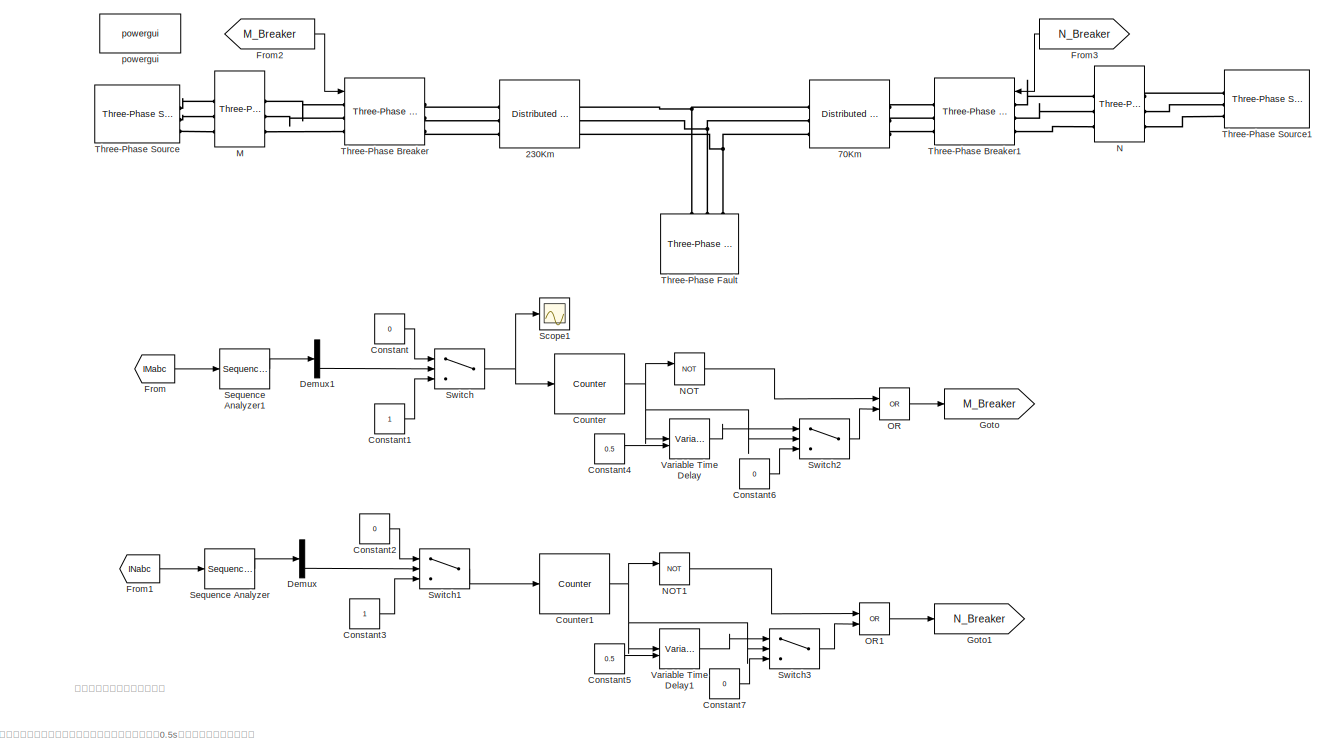
[diagram: root canvas - part 1/2, most of the canvas]
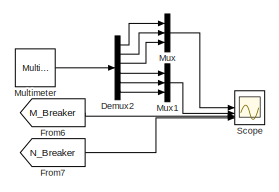
[diagram: root canvas - part 2/2, top right region]
MODEL slx_3e2d8bfbf923
KIND model
CONFIG AbsTol = auto
CONFIG EnableMultiTasking = off
CONFIG FixedStep = auto
CONFIG MaxStep = auto
CONFIG MinStep = auto
CONFIG RelTol = 1e-3
CONFIG SampleTimeConstraint = Unconstrained
CONFIG SolverName = VariableStepAuto
CONFIG StartTime = 0.0
CONFIG StopTime = 1
BLOCK [Reference] 230Km  REF=spsDistributedParametersLineLib/Distributed Parameters Line
  LibrarySourceBlock = sps_lib/Power Grid Elements/Distributed Parameters Line
  SourceBlock = spsDistributedParametersLineLib/Distributed Parameters Line
  SourceType = Distributed Parameters Line
BLOCK [Reference] 70Km  REF=spsDistributedParametersLineLib/Distributed Parameters Line
  LibrarySourceBlock = sps_lib/Power Grid Elements/Distributed Parameters Line
  SourceBlock = spsDistributedParametersLineLib/Distributed Parameters Line
  SourceType = Distributed Parameters Line
BLOCK [Constant] Constant
  Value = 0
BLOCK [Constant] Constant1
BLOCK [Constant] Constant2
  Value = 0
BLOCK [Constant] Constant3
BLOCK [Constant] Constant4
  Value = 0.5
BLOCK [Constant] Constant5
  Value = 0.5
BLOCK [Constant] Constant6
  Value = 0
BLOCK [Constant] Constant7
  Value = 0
BLOCK [Reference] Counter  REF=dspswit3/Counter
  SourceBlock = dspswit3/Counter
  SourceType = Counter
BLOCK [Reference] Counter1  REF=dspswit3/Counter
  SourceBlock = dspswit3/Counter
  SourceType = Counter
BLOCK [Demux] Demux
  Outputs = 3
BLOCK [Demux] Demux1
  Outputs = 3
BLOCK [Demux] Demux2
  Outputs = 6
BLOCK [From] From
  GotoTag = IMabc
  TagVisibility = global
BLOCK [From] From1
  GotoTag = INabc
  TagVisibility = global
BLOCK [From] From2
  GotoTag = M_Breaker
BLOCK [From] From3
  GotoTag = N_Breaker
BLOCK [From] From6
  GotoTag = M_Breaker
BLOCK [From] From7
  GotoTag = N_Breaker
BLOCK [Goto] Goto
  GotoTag = M_Breaker
BLOCK [Goto] Goto1
  GotoTag = N_Breaker
BLOCK [Reference] M  REF=spsThreePhaseVIMeasurementLib/Three-Phase
V-I Measurement
  LibrarySourceBlock = sps_lib/Sensors and Measurements/Three-Phase\nV-I Measurement
  SourceBlock = spsThreePhaseVIMeasurementLib/Three-Phase\nV-I Measurement
  SourceType = Three-Phase VI Measurement
BLOCK [Reference] Multimeter  REF=spsMultimeterLib/Multimeter
  LibrarySourceBlock = sps_lib/Sensors and Measurements/Multimeter
  SourceBlock = spsMultimeterLib/Multimeter
  SourceType = Multimeter
BLOCK [Mux] Mux
  DisplayOption = bar
  Inputs = 3
BLOCK [Mux] Mux1
  DisplayOption = bar
  Inputs = 3
BLOCK [Reference] N  REF=spsThreePhaseVIMeasurementLib/Three-Phase
V-I Measurement
  LibrarySourceBlock = sps_lib/Sensors and Measurements/Three-Phase\nV-I Measurement
  SourceBlock = spsThreePhaseVIMeasurementLib/Three-Phase\nV-I Measurement
  SourceType = Three-Phase VI Measurement
BLOCK [Logic] NOT
  AllPortsSameDT = off
  IconShape = distinctive
  Operator = NOT
  OutDataTypeStr = boolean
BLOCK [Logic] NOT1
  AllPortsSameDT = off
  IconShape = distinctive
  Operator = NOT
  OutDataTypeStr = boolean
BLOCK [Logic] OR
  AllPortsSameDT = off
  IconShape = distinctive
  Operator = OR
  OutDataTypeStr = boolean
BLOCK [Logic] OR1
  AllPortsSameDT = off
  IconShape = distinctive
  Operator = OR
  OutDataTypeStr = boolean
BLOCK [Scope] Scope
  Floating = off
  NumInputPorts = 4
  ScopeSpecificationString = Simulink.scopes.TimeScopeBlockCfg('CurrentConfiguration', extmgr.ConfigurationSet(extmgr.Configuration('Core','General UI',true,'FigureColor',[1 1 1]),extmgr.Configuration('Core','Source UI',true),extmgr.Configuration('Sources','WiredSimulink',true),extmgr.Configuration('Visuals','Time Domain',true,'SerializedDisplays',{struct('MinYLimReal','-6118553.03656','MaxYLimReal','5281665.99707','YLabelRea...<+4722ch>
BLOCK [Scope] Scope1
  Floating = off
  NumInputPorts = 1
  ScopeSpecificationString = Simulink.scopes.TimeScopeBlockCfg('CurrentConfiguration', extmgr.ConfigurationSet(extmgr.Configuration('Core','General UI',true),extmgr.Configuration('Core','Source UI',true),extmgr.Configuration('Sources','WiredSimulink',true,'DataLoggingVariableName','ScopeData1'),extmgr.Configuration('Visuals','Time Domain',true,'SerializedDisplays',{struct('MinYLimReal','-0.125','MaxYLimReal','1.125','YLabelRe...<+1353ch>
BLOCK [Reference] Sequence Analyzer  REF=spsSequenceAnalyzerLib/Sequence Analyzer
  LibrarySourceBlock = sps_lib/Sensors and Measurements/Sequence Analyzer
  SourceBlock = spsSequenceAnalyzerLib/Sequence Analyzer
  SourceType = Sequence Analyzer
BLOCK [Reference] Sequence Analyzer1  REF=spsSequenceAnalyzerLib/Sequence Analyzer
  LibrarySourceBlock = sps_lib/Sensors and Measurements/Sequence Analyzer
  SourceBlock = spsSequenceAnalyzerLib/Sequence Analyzer
  SourceType = Sequence Analyzer
BLOCK [Switch] Switch
  InputSameDT = off
  SaturateOnIntegerOverflow = off
  Threshold = 1
BLOCK [Switch] Switch1
  InputSameDT = off
  SaturateOnIntegerOverflow = off
  Threshold = 1
BLOCK [Switch] Switch2
  InputSameDT = off
  SaturateOnIntegerOverflow = off
  Threshold = 1
BLOCK [Switch] Switch3
  InputSameDT = off
  SaturateOnIntegerOverflow = off
  Threshold = 1
BLOCK [Reference] Three-Phase Breaker  REF=spsThreePhaseBreakerLib/Three-Phase Breaker
  LibrarySourceBlock = sps_lib/Power Grid Elements/Three-Phase Breaker
  SourceBlock = spsThreePhaseBreakerLib/Three-Phase Breaker
  SourceType = Three-Phase Breaker
BLOCK [Reference] Three-Phase Breaker1  REF=spsThreePhaseBreakerLib/Three-Phase Breaker
  LibrarySourceBlock = sps_lib/Power Grid Elements/Three-Phase Breaker
  SourceBlock = spsThreePhaseBreakerLib/Three-Phase Breaker
  SourceType = Three-Phase Breaker
BLOCK [Reference] Three-Phase Fault  REF=spsThreePhaseFaultLib/Three-Phase Fault
  LibrarySourceBlock = sps_lib/Power Grid Elements/Three-Phase Fault
  NameLocation = left
  SourceBlock = spsThreePhaseFaultLib/Three-Phase Fault
  SourceType = Three-Phase Fault
BLOCK [Reference] Three-Phase Source  REF=spsThreePhaseSourceLib/Three-Phase Source
  LibrarySourceBlock = sps_lib/Sources/Three-Phase Source
  SourceBlock = spsThreePhaseSourceLib/Three-Phase Source
  SourceType = Three-Phase Source
BLOCK [Reference] Three-Phase Source1  REF=spsThreePhaseSourceLib/Three-Phase Source
  LibrarySourceBlock = sps_lib/Sources/Three-Phase Source
  SourceBlock = spsThreePhaseSourceLib/Three-Phase Source
  SourceType = Three-Phase Source
BLOCK [VariableTransportDelay] Variable Time Delay
  MaximumDelay = 10
BLOCK [VariableTransportDelay] Variable Time Delay1
  MaximumDelay = 10
BLOCK [Reference] powergui  REF=sps_lib/powergui
  Priority = 1
  SourceBlock = sps_lib/powergui
  SourceType = PSB option menu block
ANNOTATION (root): 检测零序电流，一旦超过预设值，立即切开断路器，延迟0.5s后，自动使断路器重合。
ANNOTATION (root): 零序电流保护自动重合闸仿真
LINE Constant1:1 -> Switch:3
LINE Constant2:1 -> Switch1:1
LINE Constant3:1 -> Switch1:3
LINE Constant4:1 -> Variable Time Delay:2
LINE Constant5:1 -> Variable Time Delay1:2
LINE Constant6:1 -> Switch2:3
LINE Constant7:1 -> Switch3:3
LINE Constant:1 -> Switch:1
NET Counter1:1 -> NOT1:1, Switch3:2, Variable Time Delay1:1
NET Counter:1 -> NOT:1, Switch2:2, Variable Time Delay:1
LINE Demux1:3 -> Switch:2
LINE Demux2:1 -> Mux:1
LINE Demux2:2 -> Mux:2
LINE Demux2:3 -> Mux:3
LINE Demux2:4 -> Mux1:1
LINE Demux2:5 -> Mux1:2
LINE Demux2:6 -> Mux1:3
LINE Demux:3 -> Switch1:2
LINE From1:1 -> Sequence Analyzer:1
LINE From2:1 -> Three-Phase Breaker:1
LINE From3:1 -> Three-Phase Breaker1:1
LINE From6:1 -> Scope:3
LINE From7:1 -> Scope:4
LINE From:1 -> Sequence Analyzer1:1
LINE Multimeter:1 -> Demux2:1
LINE Mux1:1 -> Scope:2
LINE Mux:1 -> Scope:1
LINE NOT1:1 -> OR1:1
LINE NOT:1 -> OR:1
LINE OR1:1 -> Goto1:1
LINE OR:1 -> Goto:1
LINE Sequence Analyzer1:1 -> Demux1:1
LINE Sequence Analyzer:1 -> Demux:1
LINE Switch1:1 -> Counter1:1
LINE Switch2:1 -> OR:2
LINE Switch3:1 -> OR1:2
NET Switch:1 -> Counter:1, Scope1:1
LINE Variable Time Delay1:1 -> Switch3:1
LINE Variable Time Delay:1 -> Switch2:1
PLINE 230Km:LConn1 -- Three-Phase Breaker:RConn1
PLINE 230Km:LConn2 -- Three-Phase Breaker:RConn2
PLINE 230Km:LConn3 -- Three-Phase Breaker:RConn3
PNET net1: 230Km:RConn1 -- 70Km:RConn1 -- Three-Phase Fault:LConn1
PNET net2: 230Km:RConn2 -- 70Km:RConn2 -- Three-Phase Fault:LConn2
PNET net3: 230Km:RConn3 -- 70Km:RConn3 -- Three-Phase Fault:LConn3
PLINE 70Km:LConn1 -- Three-Phase Breaker1:RConn1
PLINE 70Km:LConn2 -- Three-Phase Breaker1:RConn2
PLINE 70Km:LConn3 -- Three-Phase Breaker1:RConn3
PLINE M:LConn1 -- Three-Phase Source:RConn1
PLINE M:LConn2 -- Three-Phase Source:RConn2
PLINE M:LConn3 -- Three-Phase Source:RConn3
PLINE M:RConn1 -- Three-Phase Breaker:LConn1
PLINE M:RConn2 -- Three-Phase Breaker:LConn2
PLINE M:RConn3 -- Three-Phase Breaker:LConn3
PLINE N:LConn1 -- Three-Phase Source1:RConn1
PLINE N:LConn2 -- Three-Phase Source1:RConn2
PLINE N:LConn3 -- Three-Phase Source1:RConn3
PLINE N:RConn1 -- Three-Phase Breaker1:LConn1
PLINE N:RConn2 -- Three-Phase Breaker1:LConn2
PLINE N:RConn3 -- Three-Phase Breaker1:LConn3
note: NET lines group one-source signal fan-out (src -> all destinations, sorted); 1:1 wires keep LINE; PNET lines group multi-terminal physical nets as a canonical sorted terminal list (undirected conserving connections); 2-terminal nets keep the pairwise PLINE form
